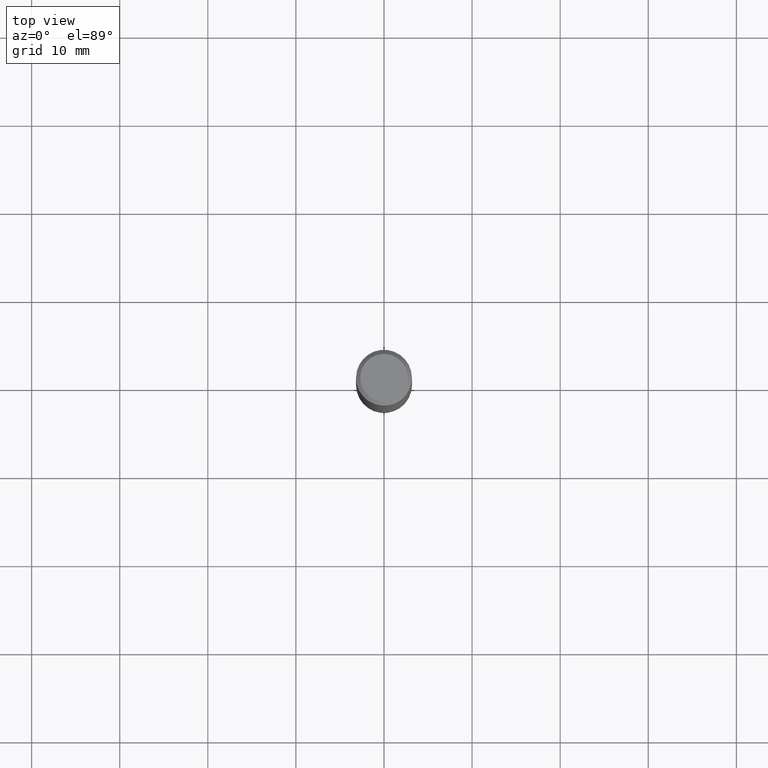
[diagram: clean part render]
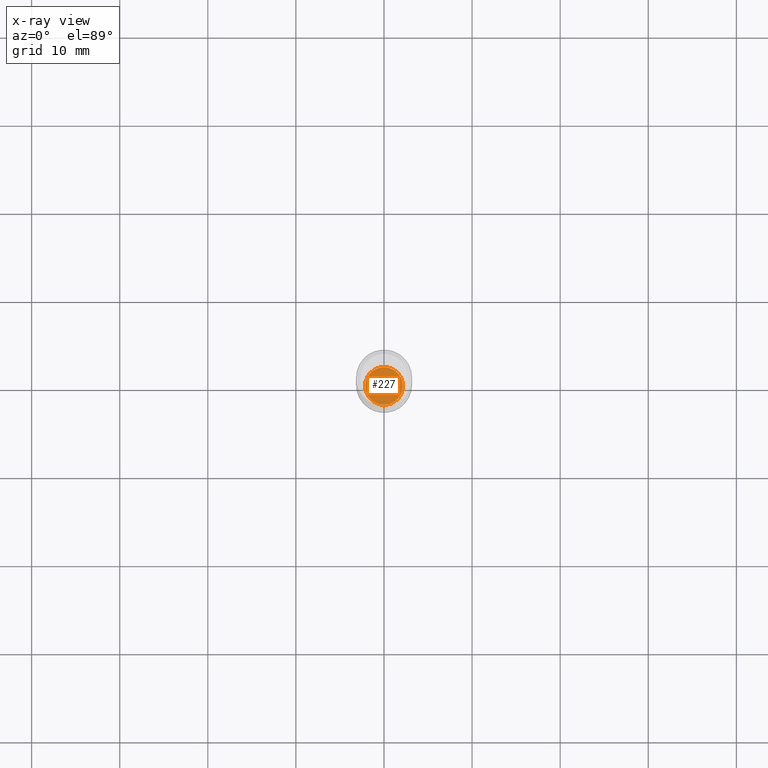
[diagram: x-ray — body ghosted, one internal face saturated and labeled with its STEP entity id]
A machine part, top view, then the same camera in x-ray: the body is ghosted and one INTERNAL B-rep face — a face not visible from any outside direction — is saturated and labeled: STEP entity #227.
In plain terms, the highlighted planar face has unit normal (-0, 0, 1).
Its self-contained STEP definition (entity closure, byte-faithful):
#28 = DIRECTION ( 'NONE',  ( 1.000000000000000000, -6.982962677686265922E-15, 4.876176775795935793E-29 ) ) ;
#37 = DIRECTION ( 'NONE',  ( -2.445468806185136597E-29, 3.491481338843145583E-15, 1.000000000000000000 ) ) ;
#56 = CARTESIAN_POINT ( 'NONE',  ( 5.305444575018654421E-29, -7.574768764620204541E-15, -2.169499999999999762 ) ) ;
#110 = AXIS2_PLACEMENT_3D ( 'NONE', #230, #481, #355 ) ;
#162 = VERTEX_POINT ( 'NONE', #438 ) ;
#175 = DIRECTION ( 'NONE',  ( -2.438088387897960049E-29, 3.491481338843145188E-15, 1.000000000000000000 ) ) ;
#178 = FACE_OUTER_BOUND ( 'NONE', #181, .T. ) ;
#180 = DIRECTION ( 'NONE',  ( 1.000000000000000000, -6.982962677686261977E-15, 0.000000000000000000 ) ) ;
#181 = EDGE_LOOP ( 'NONE', ( #384, #321 ) ) ;
#218 = CARTESIAN_POINT ( 'NONE',  ( 0.08424999999999999156, -8.163083370215270965E-15, -2.169499999999999762 ) ) ;
#227 = ADVANCED_FACE ( 'NONE', ( #178 ), #449, .F. ) ;
#230 = CARTESIAN_POINT ( 'NONE',  ( 5.305444575018654421E-29, -7.574768764620204541E-15, -2.169499999999999762 ) ) ;
#313 = EDGE_CURVE ( 'NONE', #162, #395, #392, .T. ) ;
#321 = ORIENTED_EDGE ( 'NONE', *, *, #313, .F. ) ;
#355 = DIRECTION ( 'NONE',  ( 1.000000000000000000, -6.982962677686261977E-15, 0.000000000000000000 ) ) ;
#359 = CIRCLE ( 'NONE', #110, 0.08424999999999999156 ) ;
#364 = CARTESIAN_POINT ( 'NONE',  ( 5.305444575018654421E-29, -7.574768764620204541E-15, -2.169499999999999762 ) ) ;
#384 = ORIENTED_EDGE ( 'NONE', *, *, #408, .F. ) ;
#392 = CIRCLE ( 'NONE', #428, 0.08424999999999999156 ) ;
#395 = VERTEX_POINT ( 'NONE', #218 ) ;
#408 = EDGE_CURVE ( 'NONE', #395, #162, #359, .T. ) ;
#422 = AXIS2_PLACEMENT_3D ( 'NONE', #364, #175, #28 ) ;
#428 = AXIS2_PLACEMENT_3D ( 'NONE', #56, #37, #180 ) ;
#438 = CARTESIAN_POINT ( 'NONE',  ( -0.08424999999999999156, -6.973487282568209388E-15, -2.169499999999999762 ) ) ;
#449 = PLANE ( 'NONE',  #422 ) ;
#481 = DIRECTION ( 'NONE',  ( -2.445468806185136597E-29, 3.491481338843145583E-15, 1.000000000000000000 ) ) ;